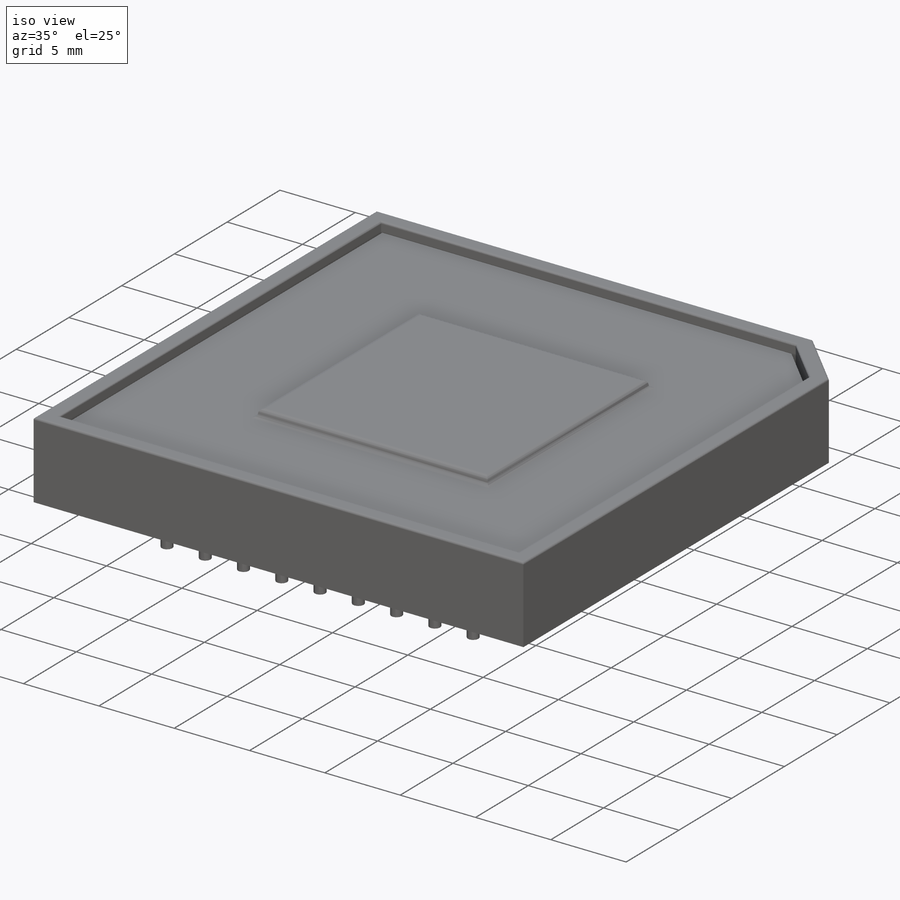
[diagram: iso view]
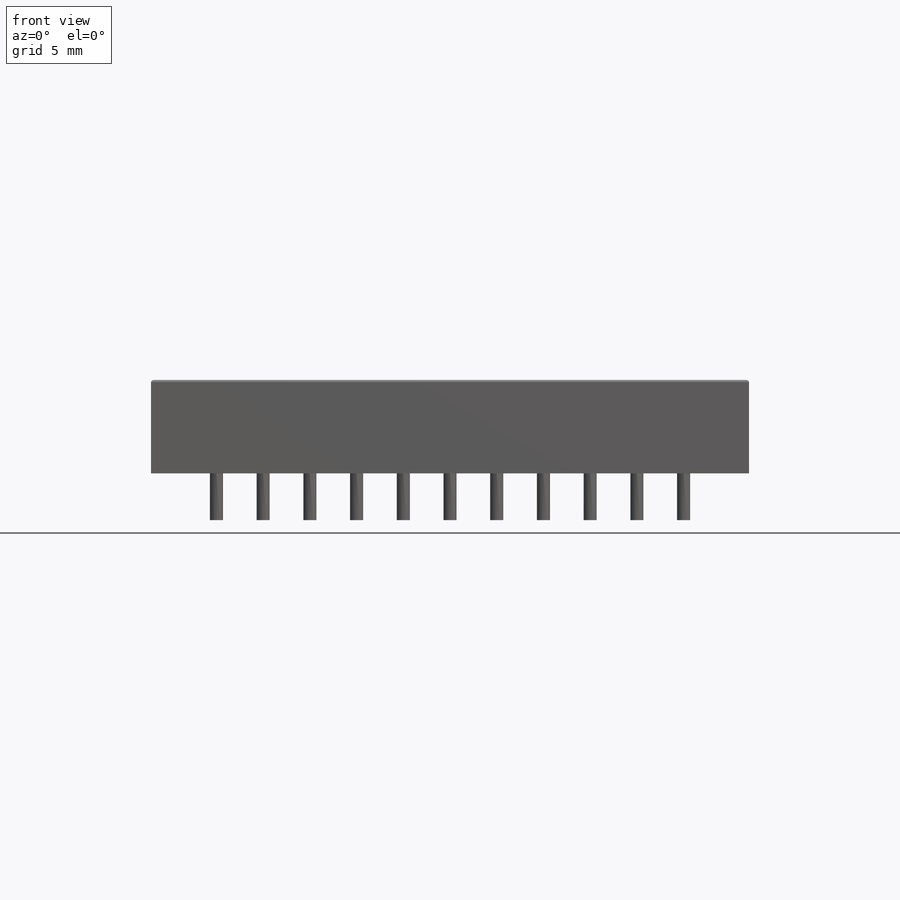
[diagram: front view]
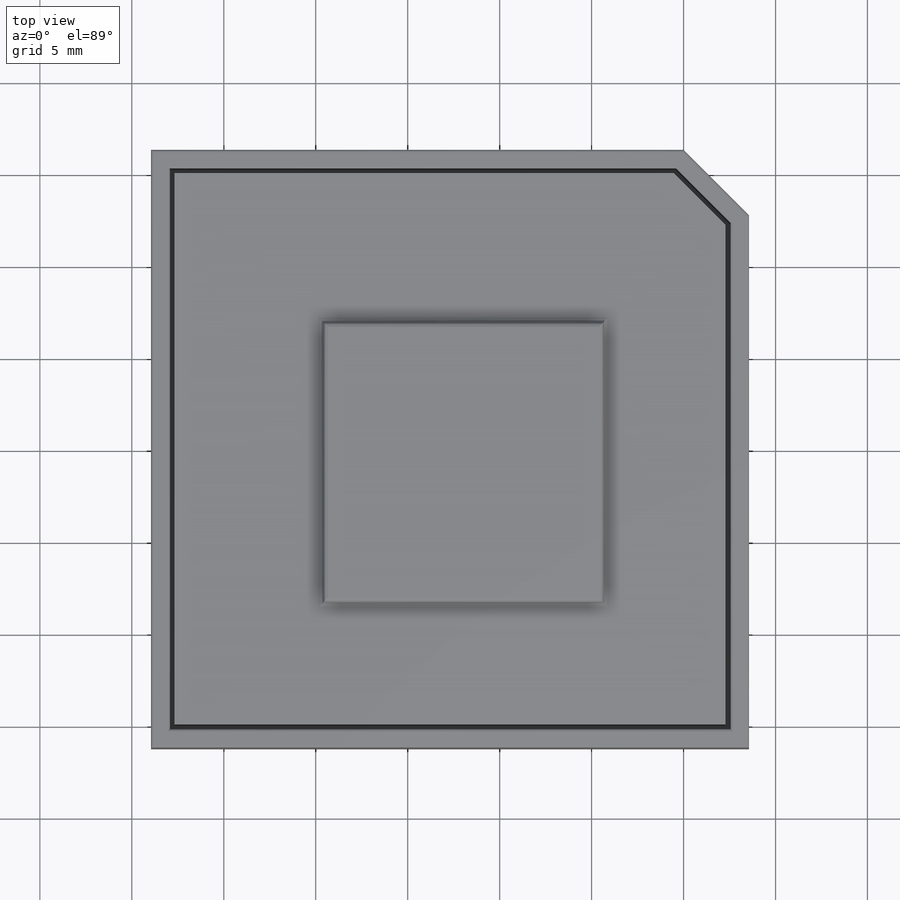
[diagram: top view]
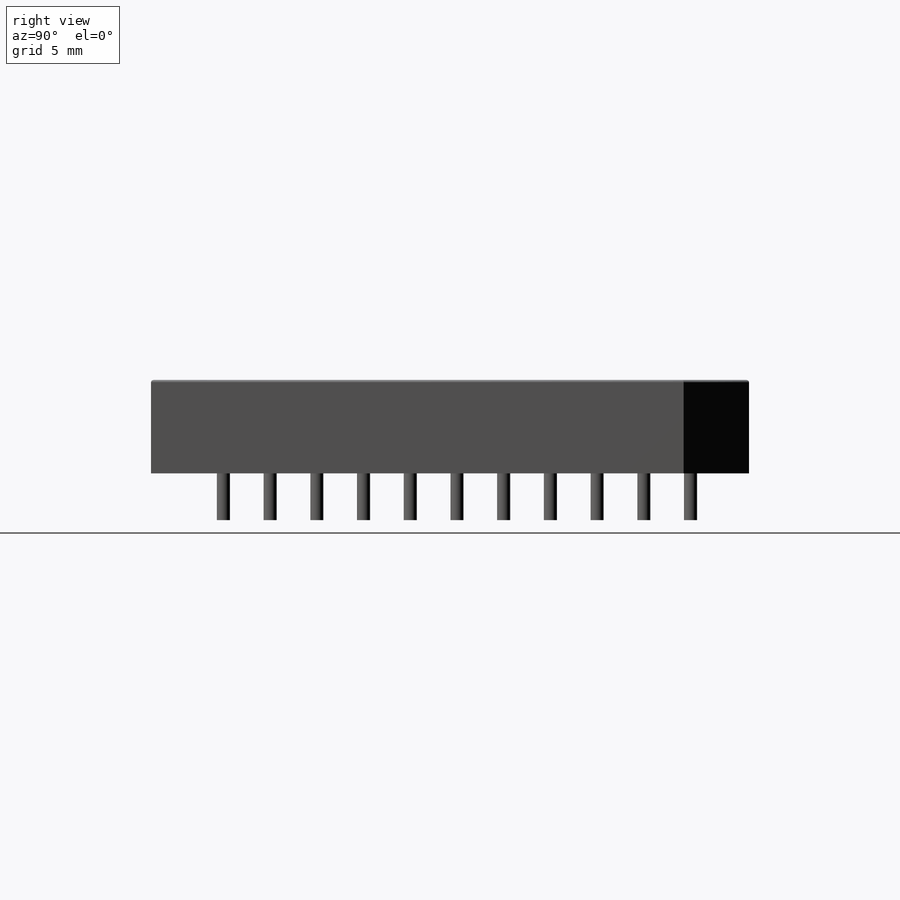
[diagram: right view]
SOLIDWORKS PART (.sldprt)
format: sldprt  version: not decoded by parser v0  size: 343,040 bytes
history: native  units: mm
features: sketch x6, extrude x4, fillet x2, pattern_linear x2, material x1, cut_extrude x1, plane x1 (+12 scaffold rows collapsed)
feature tree (29):
  scaffold x12  (default folders/planes/origin — collapsed)
  material  "Material <not specified>"
  sketch  "Sketch1"  dims[D1=32.512mm D2=32.512mm D3=16.256mm D4=3.556mm]
  extrude  "Base-Extrude"  Depth=5.08mm
  sketch  "Sketch2"  dims[D1=1.016mm]
  cut_extrude  "Cut-Extrude1"  Depth=4.064mm
  sketch  "Sketch3"  dims[D1=0.254mm]
  extrude  "Boss-Extrude1"  Depth=3.556mm
  sketch  "Sketch4"  dims[D1=15.24mm]
  extrude  "Boss-Extrude2"  Depth=0.508mm
  fillet  "Fillet2"  Radius=0.127mm
  fillet  "Fillet3"  Radius=0.254mm
  sketch  "Sketch5"  dims[D1=0.7112mm D2=5.715mm]
  extrude  "Boss-Extrude3"  Depth=2.54mm
  pattern_linear  "LPattern1"  Count1=10 Count2=11 Spacing1=2.54mm Spacing2=2.54mm
  pattern_linear  "LPattern2"  Count1=2 Count2=11 Spacing1=2.54mm Spacing2=2.54mm
  plane  "Board Plane"  Offset=0.254mm
  sketch  "Component_Outline"
decode coverage: 14 of 15 modeling features carry decoded parameters
note: suppression state not decoded; provenance and decode notes live in map.json
